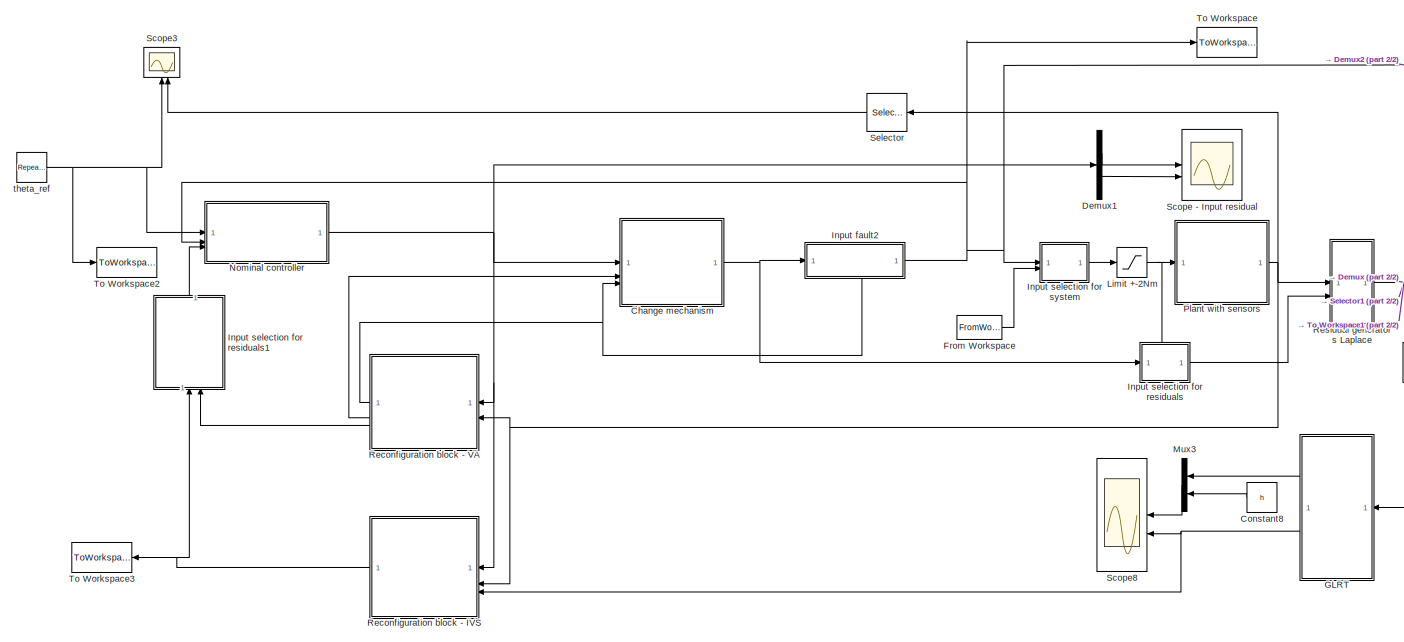
[diagram: root canvas - part 1/2, most of the canvas]
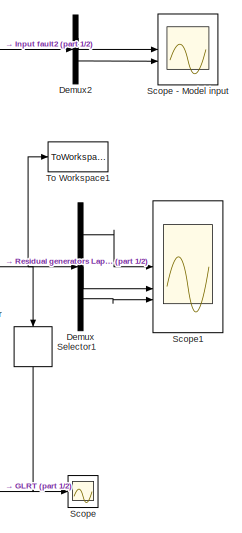
[diagram: root canvas - part 2/2, right side, full height]
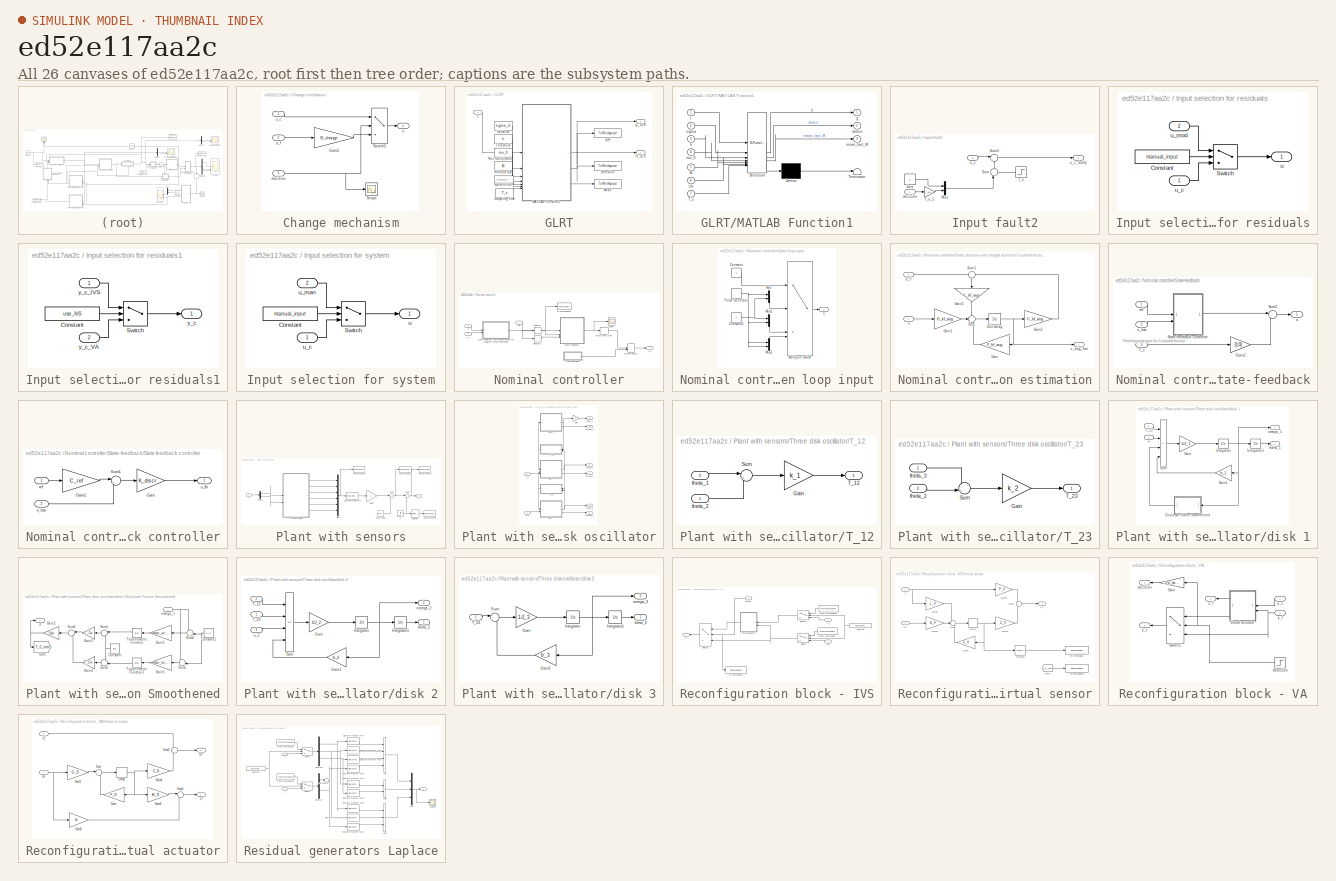
[diagram: thumbnail index - all 26 canvases of the model, root first then tree order]
MODEL slx_ed52e117aa2c
KIND model
CONFIG AbsTol = auto
CONFIG EnableMultiTasking = off
CONFIG FixedStep = auto
CONFIG MaxStep = auto
CONFIG MinStep = auto
CONFIG RelTol = 1e-8
CONFIG SampleTimeConstraint = Unconstrained
CONFIG SolverName = VariableStepAuto
CONFIG StartTime = 0.0
CONFIG StopTime = TSIM
BLOCK [SubSystem] Change mechanism
BLOCK [Gain] Change mechanism/Gain2
  Gain = B_change
  Multiplication = Matrix(K*u) (u vector)
BLOCK [Scope] Change mechanism/Scope
  Floating = off
  NumInputPorts = 1
  ScopeSpecificationString = Simulink.scopes.TimeScopeBlockCfg('CurrentConfiguration', extmgr.ConfigurationSet(extmgr.Configuration('Core','General UI',true),extmgr.Configuration('Core','Source UI',true),extmgr.Configuration('Sources','WiredSimulink',true,'DataLoggingVariableName','ScopeData3'),extmgr.Configuration('Visuals','Time Domain',true,'SerializedDisplays',{struct('MinYLimReal','-1.125','MaxYLimReal','0.125','YLabelRe...<+1385ch>
BLOCK [Switch] Change mechanism/Switch2
  InputSameDT = off
  OutDataTypeStr = double
  SaturateOnIntegerOverflow = off
BLOCK [Inport] Change mechanism/decision
  Port = 3
BLOCK [Outport] Change mechanism/u
BLOCK [Inport] Change mechanism/u_c
BLOCK [Inport] Change mechanism/u_f
  Port = 2
BLOCK [Constant] Constant8
  Value = h
BLOCK [Demux] Demux
  Outputs = 3
BLOCK [Demux] Demux1
  Outputs = 2
BLOCK [Demux] Demux2
  Outputs = 2
BLOCK [FromWorkspace] From Workspace
  VariableName = u_in
BLOCK [SubSystem] GLRT
BLOCK [ToWorkspace] GLRT/Detection
  FixptAsFi = on
  MaxDataPoints = inf
  SampleTime = T_s
  VariableName = d
BLOCK [Outport] GLRT/H_GLR
  Port = 2
  VectorParamsAs1DForOutWhenUnconnected = off
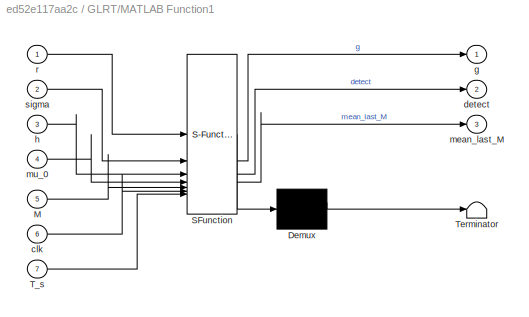
BLOCK [SubSystem] GLRT/MATLAB Function1
  ErrorFcn = Stateflow.Translate.translate
  PermitHierarchicalResolution = ExplicitOnly
  SFBlockType = MATLAB Function
  TreatAsAtomicUnit = on
BLOCK [Demux] GLRT/MATLAB Function1/ Demux 
  Outputs = 1
BLOCK [S-Function] GLRT/MATLAB Function1/ SFunction 
  EnableBusSupport = on
  FunctionName = sf_sfun
  PortCounts = [7 4]
  SFcnIsStateOwnerBlock = off
  SFunctionDeploymentMode = off
  Tag = Stateflow S-Function 1
BLOCK [Terminator] GLRT/MATLAB Function1/ Terminator 
BLOCK [Inport] GLRT/MATLAB Function1/M
  Port = 5
BLOCK [Inport] GLRT/MATLAB Function1/T_s
  Port = 7
BLOCK [Inport] GLRT/MATLAB Function1/clk
  Port = 6
BLOCK [Outport] GLRT/MATLAB Function1/detect
  Port = 2
BLOCK [Outport] GLRT/MATLAB Function1/g
BLOCK [Inport] GLRT/MATLAB Function1/h
  Port = 3
BLOCK [Outport] GLRT/MATLAB Function1/mean_last_M
  Port = 3
BLOCK [Inport] GLRT/MATLAB Function1/mu_0
  Port = 4
BLOCK [Inport] GLRT/MATLAB Function1/r
BLOCK [Inport] GLRT/MATLAB Function1/sigma
  Port = 2
BLOCK [ToWorkspace] GLRT/Mean
  FixptAsFi = on
  MaxDataPoints = inf
  SampleTime = T_s
  VariableName = m
BLOCK [Constant] GLRT/Non faulty mean
  Value = mu_0
BLOCK [Constant] GLRT/Sampling time
  Value = T_s
BLOCK [DigitalClock] GLRT/Synchronizer
  SampleTime = T_s
BLOCK [Constant] GLRT/Threshold
  Value = h
BLOCK [Constant] GLRT/Variance
  Value = sigma_r1
BLOCK [Constant] GLRT/Window size
  Value = M
BLOCK [ToWorkspace] GLRT/g(k)
  FixptAsFi = on
  MaxDataPoints = inf
  SampleTime = T_s
  VariableName = g
BLOCK [Outport] GLRT/g_GLR
  VectorParamsAs1DForOutWhenUnconnected = off
BLOCK [Inport] GLRT/z
BLOCK [SubSystem] Input fault2
  NameLocation = top
  PortSchema = {"entries":[{"content":{"sides":[{"content":{"connectorIds":["In1"]},"type":"ConnectorPlacement.EquallySpacedRectSide","uuid":"526c1397-4cf3-44a6-9980-98ca7a50f721"},{"content":{"connectorIds":["Out1"],"side":"RIGHT"},"type":"ConnectorPlacement.EquallySpacedRectSide","uuid":"ef964549-d7f9-46fc-bd3a-b9205641b52c"},{"content":{"side":"TOP"},"type":"ConnectorPlacement.EquallySpacedRectSide","uuid":"d...<+371ch>
BLOCK [Mux] Input fault2/Mux
  DisplayOption = bar
  Inputs = 2
BLOCK [Sum] Input fault2/Sum
  Inputs = |++
  NameLocation = right
BLOCK [Sum] Input fault2/Sum4
  Inputs = |++
BLOCK [Constant] Input fault2/Zero
  OutDataTypeStr = Inherit: Inherit via back propagation
  Value = 0
BLOCK [Inport] Input fault2/decision
  Port = 2
BLOCK [Step] Input fault2/f_u
  After = f_u
  NameLocation = top
  SampleTime = 0
  Time = f_u_time
BLOCK [Gain] Input fault2/f_u_2
  Gain = f_u(2)
BLOCK [Inport] Input fault2/u_c
BLOCK [Outport] Input fault2/u_c_faulty
BLOCK [SubSystem] Input selection for residuals
  PortSchema = {"entries":[{"content":{"sides":[{"content":{"connectorIds":["In1"]},"type":"ConnectorPlacement.EquallySpacedRectSide","uuid":"2ac5a926-3df0-4a66-9f06-d0f952d6fc90"},{"content":{"connectorIds":["Out1"],"side":"RIGHT"},"type":"ConnectorPlacement.EquallySpacedRectSide","uuid":"add5b808-79ba-4995-a040-b94ef5c4e3d6"},{"content":{"connectorIds":["In2"],"side":"TOP"},"type":"ConnectorPlacement.EquallySp...<+245ch>
BLOCK [Constant] Input selection for residuals/Constant
  Value = manual_input
BLOCK [Switch] Input selection for residuals/Switch
  Criteria = u2 > Threshold
  InputSameDT = off
  SaturateOnIntegerOverflow = off
BLOCK [Outport] Input selection for residuals/u
BLOCK [Inport] Input selection for residuals/u_c
BLOCK [Inport] Input selection for residuals/u_mod
  Port = 2
BLOCK [SubSystem] Input selection for residuals1
  NameLocation = right
BLOCK [Constant] Input selection for residuals1/Constant
  Value = use_IVS
BLOCK [Switch] Input selection for residuals1/Switch
  Criteria = u2 > Threshold
  InputSameDT = off
  SaturateOnIntegerOverflow = off
BLOCK [Outport] Input selection for residuals1/y_c
BLOCK [Inport] Input selection for residuals1/y_c_IVS
BLOCK [Inport] Input selection for residuals1/y_c_VA
  Port = 2
BLOCK [SubSystem] Input selection for system
BLOCK [Constant] Input selection for system/Constant
  Value = manual_input
BLOCK [Switch] Input selection for system/Switch
  Criteria = u2 > Threshold
  InputSameDT = off
  SaturateOnIntegerOverflow = off
BLOCK [Outport] Input selection for system/u
BLOCK [Inport] Input selection for system/u_c
BLOCK [Inport] Input selection for system/u_man
  Port = 2
BLOCK [Saturate] Limit +-2Nm
  LowerLimit = -2
  UpperLimit = 2
BLOCK [Mux] Mux3
  DisplayOption = bar
  Inputs = 2
BLOCK [SubSystem] Nominal controller
BLOCK [ManualSwitch] Nominal controller/Manual Switch
BLOCK [SubSystem] Nominal controller/Open loop input
BLOCK [Constant] Nominal controller/Open loop input/Constant
  Value = 3
BLOCK [Constant] Nominal controller/Open loop input/Constant1
  Value = 0
BLOCK [MultiPortSwitch] Nominal controller/Open loop input/Multiport Switch
  InputSameDT = off
  SaturateOnIntegerOverflow = off
BLOCK [Mux] Nominal controller/Open loop input/Mux
  DisplayOption = bar
  Inputs = 2
BLOCK [Mux] Nominal controller/Open loop input/Mux1
  DisplayOption = bar
  Inputs = 2
BLOCK [Mux] Nominal controller/Open loop input/Mux2
  DisplayOption = bar
  Inputs = 2
BLOCK [DiscretePulseGenerator] Nominal controller/Open loop input/Pulse Generator
  Period = 10
  PulseType = Time based
  PulseWidth = 5
BLOCK [Outport] Nominal controller/Open loop input/u
BLOCK [Scope] Nominal controller/Scope
  Floating = off
  NumInputPorts = 1
  ScopeSpecificationString = Simulink.scopes.TimeScopeBlockCfg('CurrentConfiguration', extmgr.ConfigurationSet(extmgr.Configuration('Core','General UI',true),extmgr.Configuration('Core','Source UI',true),extmgr.Configuration('Sources','WiredSimulink',true,'DataLoggingVariableName','ScopeData1'),extmgr.Configuration('Visuals','Time Domain',true,'SerializedDisplays',{struct('MinYLimReal','-1.51308','MaxYLimReal','1.51292','YLab...<+1479ch>
BLOCK [Selector] Nominal controller/Selector
  IndexOptions = Index vector (dialog)
  Indices = [1:6]
  InputPortWidth = 7
  OutputSizes = 1
BLOCK [Selector] Nominal controller/Selector1
  IndexOptions = Index vector (dialog)
  Indices = [7]
  InputPortWidth = 7
  OutputSizes = 1
BLOCK [SubSystem] Nominal controller/State observer with integral action for Coulomb friction estimation
BLOCK [Gain] Nominal controller/State observer with integral action for Coulomb friction estimation/Gain
  Gain = F_kf_aug
  Multiplication = Matrix(K*u) (u vector)
BLOCK [Gain] Nominal controller/State observer with integral action for Coulomb friction estimation/Gain1
  Gain = G_kf_aug
  Multiplication = Matrix(K*u) (u vector)
BLOCK [Gain] Nominal controller/State observer with integral action for Coulomb friction estimation/Gain2
  Gain = C_kf_aug
  Multiplication = Matrix(K*u) (u vector)
BLOCK [Gain] Nominal controller/State observer with integral action for Coulomb friction estimation/Gain3
  Gain = L_kf_aug
  Multiplication = Matrix(K*u) (u vector)
  NameLocation = left
BLOCK [Sum] Nominal controller/State observer with integral action for Coulomb friction estimation/Sum
  Inputs = +++
BLOCK [Sum] Nominal controller/State observer with integral action for Coulomb friction estimation/Sum1
  Inputs = +-
  NameLocation = left
BLOCK [UnitDelay] Nominal controller/State observer with integral action for Coulomb friction estimation/Unit Delay
  HasFrameUpgradeWarning = on
  SampleTime = T_s
BLOCK [Inport] Nominal controller/State observer with integral action for Coulomb friction estimation/u
BLOCK [Outport] Nominal controller/State observer with integral action for Coulomb friction estimation/x_aug_hat
  VectorParamsAs1DForOutWhenUnconnected = off
BLOCK [Inport] Nominal controller/State observer with integral action for Coulomb friction estimation/y_c
  Port = 2
BLOCK [SubSystem] Nominal controller/State-feedback
BLOCK [Gain] Nominal controller/State-feedback/Gain2
  Gain = [1;0]
  NameLocation = top
BLOCK [SubSystem] Nominal controller/State-feedback/State feedback controller
BLOCK [Gain] Nominal controller/State-feedback/State feedback controller/Gain
  Gain = K_discr
  Multiplication = Matrix(K*u) (u vector)
  NameLocation = top
BLOCK [Gain] Nominal controller/State-feedback/State feedback controller/Gain1
  Gain = C_ref
  Multiplication = Matrix(K*u) (u vector)
BLOCK [Sum] Nominal controller/State-feedback/State feedback controller/Sum1
  Inputs = |+-
BLOCK [Inport] Nominal controller/State-feedback/State feedback controller/ref
BLOCK [Outport] Nominal controller/State-feedback/State feedback controller/u_fb
BLOCK [Inport] Nominal controller/State-feedback/State feedback controller/x_hat
  Port = 2
BLOCK [Sum] Nominal controller/State-feedback/Sum2
  Inputs = |+-
BLOCK [Inport] Nominal controller/State-feedback/T_c
  Port = 3
BLOCK [Inport] Nominal controller/State-feedback/ref
BLOCK [Outport] Nominal controller/State-feedback/u
  VectorParamsAs1DForOutWhenUnconnected = off
BLOCK [Inport] Nominal controller/State-feedback/x_hat
  Port = 2
BLOCK [ToWorkspace] Nominal controller/To Workspace1
  FixptAsFi = on
  MaxDataPoints = inf
  SampleTime = T_s
  VariableName = x_hat
BLOCK [ZeroOrderHold] Nominal controller/Zero-Order Hold
  SampleTime = T_s
BLOCK [Inport] Nominal controller/ref
BLOCK [Inport] Nominal controller/u
  Port = 2
BLOCK [Outport] Nominal controller/u_c
BLOCK [Inport] Nominal controller/y_c
  Port = 3
BLOCK [SubSystem] Plant with sensors
BLOCK [Demux] Plant with sensors/Demux
  Outputs = 2
BLOCK [DiscreteTransferFcn] Plant with sensors/Discrete Transfer Fcn
  Denominator = [1]
  InputPortMap = u0
  SampleTime = T_s
BLOCK [Gain] Plant with sensors/Gain2
  Gain = C
  Multiplication = Matrix(K*u) (u vector)
BLOCK [Mux] Plant with sensors/Mux
  DisplayOption = bar
  Inputs = 6
BLOCK [Selector] Plant with sensors/Selector
  IndexOptions = Index vector (dialog)
  Indices = [2]
  InputPortWidth = 3
  OutputSizes = 1
BLOCK [RandomNumber] Plant with sensors/Sensor noise
  Mean = zeros(3,1)
  SampleTime = T_s
  Variance = diag(sigma_meas^2)
BLOCK [Sum] Plant with sensors/Sum2
  Inputs = |++
BLOCK [Sum] Plant with sensors/Sum4
  Inputs = |++
BLOCK [SubSystem] Plant with sensors/Three disk oscillator
BLOCK [Gain] Plant with sensors/Three disk oscillator/Gain
BLOCK [SubSystem] Plant with sensors/Three disk oscillator/T_12
BLOCK [Gain] Plant with sensors/Three disk oscillator/T_12/Gain
  Gain = k_1
BLOCK [Sum] Plant with sensors/Three disk oscillator/T_12/Sum
  Inputs = |+-
BLOCK [Outport] Plant with sensors/Three disk oscillator/T_12/T_12
  VectorParamsAs1DForOutWhenUnconnected = off
BLOCK [Inport] Plant with sensors/Three disk oscillator/T_12/theta_1
  Port = 2
BLOCK [Inport] Plant with sensors/Three disk oscillator/T_12/theta_2
BLOCK [SubSystem] Plant with sensors/Three disk oscillator/T_23
BLOCK [Gain] Plant with sensors/Three disk oscillator/T_23/Gain
  Gain = k_2
BLOCK [Sum] Plant with sensors/Three disk oscillator/T_23/Sum
  Inputs = -+|
BLOCK [Outport] Plant with sensors/Three disk oscillator/T_23/T_23
  VectorParamsAs1DForOutWhenUnconnected = off
BLOCK [Inport] Plant with sensors/Three disk oscillator/T_23/theta_2
  Port = 2
BLOCK [Inport] Plant with sensors/Three disk oscillator/T_23/theta_3
BLOCK [SubSystem] Plant with sensors/Three disk oscillator/disk 1
BLOCK [SubSystem] Plant with sensors/Three disk oscillator/disk 1/Coulomb Friction Smoothened
BLOCK [Constant] Plant with sensors/Three disk oscillator/disk 1/Coulomb Friction Smoothened/Constant
  Value = pi/2
BLOCK [Constant] Plant with sensors/Three disk oscillator/disk 1/Coulomb Friction Smoothened/Constant1
  Value = w_th
BLOCK [Gain] Plant with sensors/Three disk oscillator/disk 1/Coulomb Friction Smoothened/Gain1
  Gain = atan_scale
BLOCK [Gain] Plant with sensors/Three disk oscillator/disk 1/Coulomb Friction Smoothened/Gain2
  Gain = 1/pi
BLOCK [Gain] Plant with sensors/Three disk oscillator/disk 1/Coulomb Friction Smoothened/Gain3
  Gain = T_Cp
BLOCK [Gain] Plant with sensors/Three disk oscillator/disk 1/Coulomb Friction Smoothened/Gain4
  Gain = T_Cm
BLOCK [Gain] Plant with sensors/Three disk oscillator/disk 1/Coulomb Friction Smoothened/Gain5
  Gain = atan_scale
BLOCK [Goto] Plant with sensors/Three disk oscillator/disk 1/Coulomb Friction Smoothened/Goto
  GotoTag = T_C_real
  TagVisibility = global
BLOCK [Sum] Plant with sensors/Three disk oscillator/disk 1/Coulomb Friction Smoothened/Sum1
  Inputs = |++
BLOCK [Sum] Plant with sensors/Three disk oscillator/disk 1/Coulomb Friction Smoothened/Sum2
  Inputs = +-|
BLOCK [Sum] Plant with sensors/Three disk oscillator/disk 1/Coulomb Friction Smoothened/Sum3
  Inputs = |+-
BLOCK [Sum] Plant with sensors/Three disk oscillator/disk 1/Coulomb Friction Smoothened/Sum4
  Inputs = +-|
BLOCK [Sum] Plant with sensors/Three disk oscillator/disk 1/Coulomb Friction Smoothened/Sum5
  Inputs = ++|
BLOCK [Trigonometry] Plant with sensors/Three disk oscillator/disk 1/Coulomb Friction Smoothened/Trigonometric Function
  Operator = atan
BLOCK [Trigonometry] Plant with sensors/Three disk oscillator/disk 1/Coulomb Friction Smoothened/Trigonometric Function1
  Operator = atan
BLOCK [Outport] Plant with sensors/Three disk oscillator/disk 1/Coulomb Friction Smoothened/d
  VectorParamsAs1DForOutWhenUnconnected = off
BLOCK [Inport] Plant with sensors/Three disk oscillator/disk 1/Coulomb Friction Smoothened/omega_1
BLOCK [Gain] Plant with sensors/Three disk oscillator/disk 1/Gain
  Gain = 1/J_1
BLOCK [Gain] Plant with sensors/Three disk oscillator/disk 1/Gain1
  Gain = b_1
BLOCK [Integrator] Plant with sensors/Three disk oscillator/disk 1/Integrator
  InitialCondition = x_0(2)
BLOCK [Integrator] Plant with sensors/Three disk oscillator/disk 1/Integrator1
  InitialCondition = x_0(1)
BLOCK [Sum] Plant with sensors/Three disk oscillator/disk 1/Sum
  IconShape = rectangular
  Inputs = -+--
BLOCK [Inport] Plant with sensors/Three disk oscillator/disk 1/T_12
BLOCK [Outport] Plant with sensors/Three disk oscillator/disk 1/omega_1
  Port = 2
  VectorParamsAs1DForOutWhenUnconnected = off
BLOCK [Outport] Plant with sensors/Three disk oscillator/disk 1/theta_1
  VectorParamsAs1DForOutWhenUnconnected = off
BLOCK [Inport] Plant with sensors/Three disk oscillator/disk 1/u
  Port = 2
BLOCK [SubSystem] Plant with sensors/Three disk oscillator/disk 2
BLOCK [Gain] Plant with sensors/Three disk oscillator/disk 2/Gain
  Gain = 1/J_2
BLOCK [Gain] Plant with sensors/Three disk oscillator/disk 2/Gain1
  Gain = b_2
BLOCK [Integrator] Plant with sensors/Three disk oscillator/disk 2/Integrator
  InitialCondition = x_0(4)
BLOCK [Integrator] Plant with sensors/Three disk oscillator/disk 2/Integrator1
  InitialCondition = x_0(3)
BLOCK [Sum] Plant with sensors/Three disk oscillator/disk 2/Sum
  IconShape = rectangular
  Inputs = +-+-
BLOCK [Inport] Plant with sensors/Three disk oscillator/disk 2/T_12
  Port = 2
BLOCK [Inport] Plant with sensors/Three disk oscillator/disk 2/T_23
BLOCK [Outport] Plant with sensors/Three disk oscillator/disk 2/omega_2
  Port = 2
  VectorParamsAs1DForOutWhenUnconnected = off
BLOCK [Outport] Plant with sensors/Three disk oscillator/disk 2/theta_2
  VectorParamsAs1DForOutWhenUnconnected = off
BLOCK [Inport] Plant with sensors/Three disk oscillator/disk 2/u_2
  Port = 3
BLOCK [SubSystem] Plant with sensors/Three disk oscillator/disk 3
BLOCK [Gain] Plant with sensors/Three disk oscillator/disk 3/Gain
  Gain = 1/J_3
BLOCK [Gain] Plant with sensors/Three disk oscillator/disk 3/Gain1
  Gain = b_3
BLOCK [Integrator] Plant with sensors/Three disk oscillator/disk 3/Integrator
  InitialCondition = x_0(6)
BLOCK [Integrator] Plant with sensors/Three disk oscillator/disk 3/Integrator1
  InitialCondition = x_0(5)
BLOCK [Sum] Plant with sensors/Three disk oscillator/disk 3/Sum
  Inputs = |+-
BLOCK [Inport] Plant with sensors/Three disk oscillator/disk 3/T_23
BLOCK [Outport] Plant with sensors/Three disk oscillator/disk 3/omega_3
  Port = 2
  VectorParamsAs1DForOutWhenUnconnected = off
BLOCK [Outport] Plant with sensors/Three disk oscillator/disk 3/theta_3
  VectorParamsAs1DForOutWhenUnconnected = off
BLOCK [Outport] Plant with sensors/Three disk oscillator/omega_1
  Port = 2
  VectorParamsAs1DForOutWhenUnconnected = off
BLOCK [Outport] Plant with sensors/Three disk oscillator/omega_2
  Port = 4
  VectorParamsAs1DForOutWhenUnconnected = off
BLOCK [Outport] Plant with sensors/Three disk oscillator/omega_3
  Port = 6
  VectorParamsAs1DForOutWhenUnconnected = off
BLOCK [Outport] Plant with sensors/Three disk oscillator/theta_1
  VectorParamsAs1DForOutWhenUnconnected = off
BLOCK [Outport] Plant with sensors/Three disk oscillator/theta_2
  Port = 3
  VectorParamsAs1DForOutWhenUnconnected = off
BLOCK [Outport] Plant with sensors/Three disk oscillator/theta_3
  Port = 5
  VectorParamsAs1DForOutWhenUnconnected = off
BLOCK [Inport] Plant with sensors/Three disk oscillator/u_1
BLOCK [Inport] Plant with sensors/Three disk oscillator/u_2
  Port = 2
BLOCK [ToWorkspace] Plant with sensors/To Workspace
  FixptAsFi = on
  MaxDataPoints = inf
  SampleTime = T_s
  VariableName = x_real
BLOCK [ToWorkspace] Plant with sensors/To Workspace1
  FixptAsFi = on
  MaxDataPoints = inf
  SampleTime = T_s
  VariableName = y_real
BLOCK [ToWorkspace] Plant with sensors/To Workspace2
  FixptAsFi = on
  MaxDataPoints = inf
  SampleTime = T_s
  VariableName = y_meas
BLOCK [ToWorkspace] Plant with sensors/To Workspace3
  FixptAsFi = on
  MaxDataPoints = inf
  SampleTime = T_s
  VariableName = f_2
BLOCK [Step] Plant with sensors/f_y
  After = f_m
  Before = [0;0;0]
  SampleTime = 0
  Time = f_m_time
BLOCK [Inport] Plant with sensors/u
BLOCK [Outport] Plant with sensors/y
  VectorParamsAs1DForOutWhenUnconnected = off
BLOCK [SubSystem] Reconfiguration block - IVS
BLOCK [Constant] Reconfiguration block - IVS/Constant
  NameLocation = top
  Value = sim_experiment
BLOCK [FromWorkspace] Reconfiguration block - IVS/From Workspace
  NameLocation = top
  VariableName = y_experiment
BLOCK [FromWorkspace] Reconfiguration block - IVS/From Workspace1
  NameLocation = top
  VariableName = u_experiment
BLOCK [Switch] Reconfiguration block - IVS/Switch
  Criteria = u2 > Threshold
  InputSameDT = off
  NameLocation = top
  SaturateOnIntegerOverflow = off
BLOCK [Switch] Reconfiguration block - IVS/Switch1
  InputSameDT = off
  SaturateOnIntegerOverflow = off
  Threshold = 0.98
BLOCK [Switch] Reconfiguration block - IVS/Switch2
  Criteria = u2 > Threshold
  InputSameDT = off
  NameLocation = top
  SaturateOnIntegerOverflow = off
BLOCK [ToWorkspace] Reconfiguration block - IVS/To Workspace
  FixptAsFi = on
  MaxDataPoints = inf
  SampleTime = T_s
  VariableName = detect
BLOCK [SubSystem] Reconfiguration block - IVS/Virtual sensor
BLOCK [Delay] Reconfiguration block - IVS/Virtual sensor/Delay
  DelayLength = 1
  InputPortMap = u0
  SampleTime = T_s
BLOCK [From] Reconfiguration block - IVS/Virtual sensor/From
  GotoTag = T_C_real
  TagVisibility = global
BLOCK [Gain] Reconfiguration block - IVS/Virtual sensor/Gain
  Gain = F_V
  Multiplication = Matrix(K*u) (u vector)
BLOCK [Gain] Reconfiguration block - IVS/Virtual sensor/Gain1
  Gain = G_V
  Multiplication = Matrix(K*u) (u vector)
BLOCK [Gain] Reconfiguration block - IVS/Virtual sensor/Gain3
  Gain = P_V
  Multiplication = Matrix(K*u) (u vector)
  NameLocation = top
BLOCK [Gain] Reconfiguration block - IVS/Virtual sensor/Gain4
  Gain = C_V
  Multiplication = Matrix(K*u) (u vector)
BLOCK [Gain] Reconfiguration block - IVS/Virtual sensor/Gain6
  Gain = L_V
  Multiplication = Matrix(K*u) (u vector)
BLOCK [Selector] Reconfiguration block - IVS/Virtual sensor/Selector
  IndexOptions = Index vector (dialog)
  Indices = [7]
  InputPortWidth = 7
  NameLocation = top
  OutputSizes = 1
BLOCK [Sum] Reconfiguration block - IVS/Virtual sensor/Sum
  Inputs = +++
BLOCK [Sum] Reconfiguration block - IVS/Virtual sensor/Sum2
BLOCK [ToWorkspace] Reconfiguration block - IVS/Virtual sensor/To Workspace
  FixptAsFi = on
  MaxDataPoints = inf
  SampleTime = T_s
  VariableName = dist_hat
BLOCK [ToWorkspace] Reconfiguration block - IVS/Virtual sensor/To Workspace1
  FixptAsFi = on
  MaxDataPoints = inf
  SampleTime = T_s
  VariableName = dist
BLOCK [Inport] Reconfiguration block - IVS/Virtual sensor/u_c
BLOCK [Outport] Reconfiguration block - IVS/Virtual sensor/y_c
  VectorParamsAs1DForOutWhenUnconnected = off
BLOCK [Inport] Reconfiguration block - IVS/Virtual sensor/y_f
  Port = 2
BLOCK [Inport] Reconfiguration block - IVS/detect
  NameLocation = top
  Port = 3
BLOCK [Inport] Reconfiguration block - IVS/u_c
BLOCK [Outport] Reconfiguration block - IVS/y_c
  VectorParamsAs1DForOutWhenUnconnected = off
BLOCK [Inport] Reconfiguration block - IVS/y_f
  Port = 2
BLOCK [SubSystem] Reconfiguration block - VA
BLOCK [Gain] Reconfiguration block - VA/Gain
  Gain = -1*u_fault
BLOCK [Switch] Reconfiguration block - VA/Switch1
  InputSameDT = off
  SaturateOnIntegerOverflow = off
  Threshold = 0.98
BLOCK [SubSystem] Reconfiguration block - VA/Virtual actuator
BLOCK [Delay] Reconfiguration block - VA/Virtual actuator/Delay
  DelayLength = 1
  InputPortMap = u0
  SampleTime = T_s
BLOCK [Gain] Reconfiguration block - VA/Virtual actuator/Gain
  Gain = F_D
  Multiplication = Matrix(K*u) (u vector)
BLOCK [Gain] Reconfiguration block - VA/Virtual actuator/Gain1
  Gain = G_D
  Multiplication = Matrix(K*u) (u vector)
BLOCK [Gain] Reconfiguration block - VA/Virtual actuator/Gain2
  Gain = M_D
  Multiplication = Matrix(K*u) (u vector)
BLOCK [Gain] Reconfiguration block - VA/Virtual actuator/Gain4
  Gain = C_D
  Multiplication = Matrix(K*u) (u vector)
BLOCK [Gain] Reconfiguration block - VA/Virtual actuator/Gain5
  Gain = N
  Multiplication = Matrix(K*u) (u vector)
  NameLocation = top
BLOCK [Sum] Reconfiguration block - VA/Virtual actuator/Sum
  Inputs = |++
BLOCK [Sum] Reconfiguration block - VA/Virtual actuator/Sum1
  Inputs = |++
BLOCK [Sum] Reconfiguration block - VA/Virtual actuator/Sum2
BLOCK [Inport] Reconfiguration block - VA/Virtual actuator/u_c
BLOCK [Outport] Reconfiguration block - VA/Virtual actuator/u_f
  VectorParamsAs1DForOutWhenUnconnected = off
BLOCK [Outport] Reconfiguration block - VA/Virtual actuator/y_c
  Port = 2
  VectorParamsAs1DForOutWhenUnconnected = off
BLOCK [Inport] Reconfiguration block - VA/Virtual actuator/y_f
  Port = 2
BLOCK [Outport] Reconfiguration block - VA/decision
  VectorParamsAs1DForOutWhenUnconnected = off
BLOCK [Step] Reconfiguration block - VA/detection
  SampleTime = T_s
  Time = detect_time
BLOCK [Inport] Reconfiguration block - VA/u_c
BLOCK [Outport] Reconfiguration block - VA/u_f
  NameLocation = top
  Port = 2
  VectorParamsAs1DForOutWhenUnconnected = off
BLOCK [Outport] Reconfiguration block - VA/y_c
  Port = 3
  VectorParamsAs1DForOutWhenUnconnected = off
BLOCK [Inport] Reconfiguration block - VA/y_f
  Port = 2
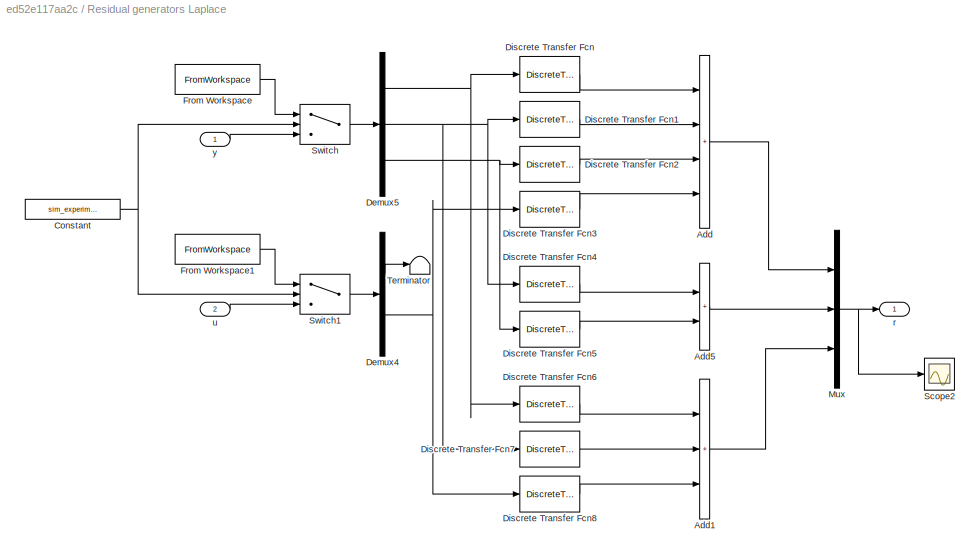
BLOCK [SubSystem] Residual generators Laplace
BLOCK [Sum] Residual generators Laplace/Add
  IconShape = rectangular
  Inputs = ++++
BLOCK [Sum] Residual generators Laplace/Add1
  IconShape = rectangular
  Inputs = +++
BLOCK [Sum] Residual generators Laplace/Add5
  IconShape = rectangular
BLOCK [Constant] Residual generators Laplace/Constant
  Value = sim_experiment
BLOCK [Demux] Residual generators Laplace/Demux4
  Outputs = 2
BLOCK [Demux] Residual generators Laplace/Demux5
  Outputs = 3
BLOCK [DiscreteTransferFcn] Residual generators Laplace/Discrete Transfer Fcn
  Denominator = r1y1_den_dt
  InputPortMap = u0
  Numerator = r1y1_num_dt
BLOCK [DiscreteTransferFcn] Residual generators Laplace/Discrete Transfer Fcn1
  Denominator = r1y2_den_dt
  InputPortMap = u0
  Numerator = r1y2_num_dt
BLOCK [DiscreteTransferFcn] Residual generators Laplace/Discrete Transfer Fcn2
  Denominator = r1y3_den_dt
  InputPortMap = u0
  Numerator = r1y3_num_dt
BLOCK [DiscreteTransferFcn] Residual generators Laplace/Discrete Transfer Fcn3
  Denominator = r1u2_den_dt
  InputPortMap = u0
  Numerator = r1u2_num_dt
BLOCK [DiscreteTransferFcn] Residual generators Laplace/Discrete Transfer Fcn4
  Denominator = r2y2_den_dt
  InputPortMap = u0
  Numerator = r2y2_num_dt
BLOCK [DiscreteTransferFcn] Residual generators Laplace/Discrete Transfer Fcn5
  Denominator = r2y3_den_dt
  InputPortMap = u0
  Numerator = r2y3_num_dt
BLOCK [DiscreteTransferFcn] Residual generators Laplace/Discrete Transfer Fcn6
  Denominator = r3y1_den_dt
  InputPortMap = u0
  Numerator = r3y1_num_dt
BLOCK [DiscreteTransferFcn] Residual generators Laplace/Discrete Transfer Fcn7
  Denominator = r3y2_den_dt
  InputPortMap = u0
  Numerator = r3y2_num_dt
BLOCK [DiscreteTransferFcn] Residual generators Laplace/Discrete Transfer Fcn8
  Denominator = r3u2_den_dt
  InputPortMap = u0
  Numerator = r3u2_num_dt
BLOCK [FromWorkspace] Residual generators Laplace/From Workspace
  VariableName = y_experiment
BLOCK [FromWorkspace] Residual generators Laplace/From Workspace1
  VariableName = u_experiment
BLOCK [Mux] Residual generators Laplace/Mux
  DisplayOption = bar
  Inputs = 3
BLOCK [Scope] Residual generators Laplace/Scope2
  Floating = off
  NumInputPorts = 1
  ScopeSpecificationString = Simulink.scopes.TimeScopeBlockCfg('CurrentConfiguration', extmgr.ConfigurationSet(extmgr.Configuration('Core','General UI',true),extmgr.Configuration('Core','Source UI',true),extmgr.Configuration('Sources','WiredSimulink',true,'DataLoggingVariableName','ScopeData3'),extmgr.Configuration('Visuals','Time Domain',true,'SerializedDisplays',{struct('MinYLimReal','-0.16001','MaxYLimReal','0.08985','YLab...<+1405ch>
BLOCK [Switch] Residual generators Laplace/Switch
  Criteria = u2 > Threshold
  InputSameDT = off
  SaturateOnIntegerOverflow = off
BLOCK [Switch] Residual generators Laplace/Switch1
  Criteria = u2 > Threshold
  InputSameDT = off
  SaturateOnIntegerOverflow = off
BLOCK [Terminator] Residual generators Laplace/Terminator
BLOCK [Outport] Residual generators Laplace/r
BLOCK [Inport] Residual generators Laplace/u
  Port = 2
BLOCK [Inport] Residual generators Laplace/y
BLOCK [Scope] Scope
  Floating = off
  NumInputPorts = 1
  ScopeSpecificationString = Simulink.scopes.TimeScopeBlockCfg('CurrentConfiguration', extmgr.ConfigurationSet(extmgr.Configuration('Core','General UI',true),extmgr.Configuration('Core','Source UI',true),extmgr.Configuration('Sources','WiredSimulink',true,'DataLoggingVariableName','ScopeData2'),extmgr.Configuration('Visuals','Time Domain',true,'SerializedDisplays',{struct('MinYLimReal','-0.1534','MaxYLimReal','0.57406','YLabe...<+1366ch>
BLOCK [Scope] Scope - Input residual
  Floating = off
  NumInputPorts = 2
  ScopeSpecificationString = Simulink.scopes.TimeScopeBlockCfg('CurrentConfiguration', extmgr.ConfigurationSet(extmgr.Configuration('Core','General UI',true),extmgr.Configuration('Core','Source UI',true),extmgr.Configuration('Sources','WiredSimulink',true,'SampleTime','T_s','DataLoggingVariableName','ScopeData3'),extmgr.Configuration('Visuals','Time Domain',true,'SerializedDisplays',{struct('MinYLimReal','-0.125','MaxYLimReal...<+2312ch>
BLOCK [Scope] Scope - Model input
  Floating = off
  NumInputPorts = 2
  ScopeSpecificationString = Simulink.scopes.TimeScopeBlockCfg('CurrentConfiguration', extmgr.ConfigurationSet(extmgr.Configuration('Core','General UI',true),extmgr.Configuration('Core','Source UI',true),extmgr.Configuration('Sources','WiredSimulink',true,'SampleTime','T_s','DataLoggingVariableName','ScopeData1'),extmgr.Configuration('Visuals','Time Domain',true,'SerializedDisplays',{struct('MinYLimReal','-0.125','MaxYLimReal...<+2314ch>
BLOCK [Scope] Scope1
  Floating = off
  NumInputPorts = 3
  ScopeSpecificationString = Simulink.scopes.TimeScopeBlockCfg('CurrentConfiguration', extmgr.ConfigurationSet(extmgr.Configuration('Core','General UI',true),extmgr.Configuration('Core','Source UI',true),extmgr.Configuration('Sources','WiredSimulink',true,'SampleTime','T_s','DataLoggingVariableName','ScopeData4'),extmgr.Configuration('Visuals','Time Domain',true,'SerializedDisplays',{struct('MinYLimReal','-1.00000','MaxYLimRe...<+2305ch>
BLOCK [Scope] Scope3
  Floating = off
  NameLocation = left
  NumInputPorts = 2
  ScopeSpecificationString = Simulink.scopes.TimeScopeBlockCfg('CurrentConfiguration', extmgr.ConfigurationSet(extmgr.Configuration('Core','General UI',true),extmgr.Configuration('Core','Source UI',true),extmgr.Configuration('Sources','WiredSimulink',true,'SampleTime','T_s','DataLoggingVariableName','ScopeData3'),extmgr.Configuration('Visuals','Time Domain',true,'SerializedDisplays',{struct('MinYLimReal','-0.48008','MaxYLimRe...<+1623ch>
BLOCK [Scope] Scope8
  Floating = off
  NumInputPorts = 2
  ScopeSpecificationString = Simulink.scopes.TimeScopeBlockCfg('CurrentConfiguration', extmgr.ConfigurationSet(extmgr.Configuration('Core','General UI',true),extmgr.Configuration('Core','Source UI',true),extmgr.Configuration('Sources','WiredSimulink',true,'DataLoggingVariableName','ScopeData1'),extmgr.Configuration('Visuals','Time Domain',true,'SerializedDisplays',{struct('MinYLimReal','-0.94404','MaxYLimReal','9.08025','YLab...<+2099ch>
BLOCK [Selector] Selector
  IndexOptions = Index vector (dialog)
  Indices = [3]
  InputPortWidth = 3
  OutputSizes = 1
BLOCK [Selector] Selector1
  IndexOptions = Index vector (dialog)
  Indices = [1]
  InputPortWidth = 3
  NameLocation = left
  OutputSizes = 1
BLOCK [ToWorkspace] To Workspace
  FixptAsFi = on
  MaxDataPoints = inf
  SampleTime = T_s
  VariableName = input_u
BLOCK [ToWorkspace] To Workspace1
  FixptAsFi = on
  MaxDataPoints = inf
  SampleTime = T_s
  VariableName = r
BLOCK [ToWorkspace] To Workspace2
  FixptAsFi = on
  MaxDataPoints = inf
  SampleTime = T_s
  VariableName = theta_ref
BLOCK [ToWorkspace] To Workspace3
  FixptAsFi = on
  MaxDataPoints = inf
  NameLocation = top
  SampleTime = T_s
  VariableName = y_c
BLOCK [Reference] theta_ref  REF=simulink/Sources/Repeating
Sequence
Stair
  SourceBlock = simulink/Sources/Repeating\nSequence\nStair
  SourceType = Repeating Sequence Stair
ANNOTATION Nominal controller/State-feedback: Feed-forward term for Coulomb friction
LINE Change mechanism/Gain2:1 -> Change mechanism/Switch2:3
LINE Change mechanism/Switch2:1 -> Change mechanism/u:1
NET Change mechanism/decision:1 -> Change mechanism/Scope:1, Change mechanism/Switch2:2
LINE Change mechanism/u_c:1 -> Change mechanism/Switch2:1
LINE Change mechanism/u_f:1 -> Change mechanism/Gain2:1
NET Change mechanism:1 -> Input fault2:1, Input selection for residuals:1
LINE Constant8:1 -> Mux3:2
LINE Demux1:1 -> Scope - Input residual:1
LINE Demux1:2 -> Scope - Input residual:2
LINE Demux2:1 -> Scope - Model input:1
LINE Demux2:2 -> Scope - Model input:2
LINE Demux:1 -> Scope1:1
LINE Demux:2 -> Scope1:2
LINE Demux:3 -> Scope1:3
LINE From Workspace:1 -> Input selection for system:2
NET GLRT/MATLAB Function1:1 -> GLRT/g(k):1, GLRT/g_GLR:1
NET GLRT/MATLAB Function1:2 -> GLRT/Detection:1, GLRT/H_GLR:1
LINE GLRT/MATLAB Function1:3 -> GLRT/Mean:1
LINE GLRT/Non faulty mean:1 -> GLRT/MATLAB Function1:4
LINE GLRT/Sampling time:1 -> GLRT/MATLAB Function1:7
LINE GLRT/Synchronizer:1 -> GLRT/MATLAB Function1:6
LINE GLRT/Threshold:1 -> GLRT/MATLAB Function1:3
LINE GLRT/Variance:1 -> GLRT/MATLAB Function1:2
LINE GLRT/Window size:1 -> GLRT/MATLAB Function1:5
LINE GLRT/z:1 -> GLRT/MATLAB Function1:1
LINE GLRT:1 -> Mux3:1
NET GLRT:2 -> Reconfiguration block - IVS:3, Scope8:2
LINE Input fault2/Mux:1 -> Input fault2/Sum:1
LINE Input fault2/Sum4:1 -> Input fault2/u_c_faulty:1
LINE Input fault2/Sum:1 -> Input fault2/Sum4:2
LINE Input fault2/Zero:1 -> Input fault2/Mux:1
LINE Input fault2/decision:1 -> Input fault2/f_u_2:1
LINE Input fault2/f_u:1 -> Input fault2/Sum:2
LINE Input fault2/f_u_2:1 -> Input fault2/Mux:2
LINE Input fault2/u_c:1 -> Input fault2/Sum4:1
NET Input fault2:1 -> Demux2:1, Input selection for system:1, Nominal controller:2, To Workspace:1
LINE Input selection for residuals/Constant:1 -> Input selection for residuals/Switch:2
LINE Input selection for residuals/Switch:1 -> Input selection for residuals/u:1
LINE Input selection for residuals/u_c:1 -> Input selection for residuals/Switch:3
LINE Input selection for residuals/u_mod:1 -> Input selection for residuals/Switch:1
LINE Input selection for residuals1/Constant:1 -> Input selection for residuals1/Switch:2
LINE Input selection for residuals1/Switch:1 -> Input selection for residuals1/y_c:1
LINE Input selection for residuals1/y_c_IVS:1 -> Input selection for residuals1/Switch:1
LINE Input selection for residuals1/y_c_VA:1 -> Input selection for residuals1/Switch:3
LINE Input selection for residuals1:1 -> Nominal controller:3
LINE Input selection for residuals:1 -> Residual generators Laplace:2
LINE Input selection for system/Constant:1 -> Input selection for system/Switch:2
LINE Input selection for system/Switch:1 -> Input selection for system/u:1
LINE Input selection for system/u_c:1 -> Input selection for system/Switch:3
LINE Input selection for system/u_man:1 -> Input selection for system/Switch:1
LINE Input selection for system:1 -> Limit +-2Nm:1
NET Limit +-2Nm:1 -> Input selection for residuals:2, Plant with sensors:1
LINE Mux3:1 -> Scope8:1
LINE Nominal controller/Manual Switch:1 -> Nominal controller/u_c:1
NET Nominal controller/Open loop input/Constant1:1 -> Nominal controller/Open loop input/Mux1:1, Nominal controller/Open loop input/Mux:2
LINE Nominal controller/Open loop input/Constant:1 -> Nominal controller/Open loop input/Multiport Switch:1
LINE Nominal controller/Open loop input/Multiport Switch:1 -> Nominal controller/Open loop input/u:1
LINE Nominal controller/Open loop input/Mux1:1 -> Nominal controller/Open loop input/Multiport Switch:3
LINE Nominal controller/Open loop input/Mux2:1 -> Nominal controller/Open loop input/Multiport Switch:4
LINE Nominal controller/Open loop input/Mux:1 -> Nominal controller/Open loop input/Multiport Switch:2
NET Nominal controller/Open loop input/Pulse Generator:1 -> Nominal controller/Open loop input/Mux1:2, Nominal controller/Open loop input/Mux2:1, Nominal controller/Open loop input/Mux2:2, Nominal controller/Open loop input/Mux:1
LINE Nominal controller/Open loop input:1 -> Nominal controller/Manual Switch:2
LINE Nominal controller/Selector1:1 -> Nominal controller/State-feedback:3
NET Nominal controller/Selector:1 -> Nominal controller/State-feedback:2, Nominal controller/To Workspace1:1
LINE Nominal controller/State observer with integral action for Coulomb friction estimation/Gain1:1 -> Nominal controller/State observer with integral action for Coulomb friction estimation/Sum:2
LINE Nominal controller/State observer with integral action for Coulomb friction estimation/Gain2:1 -> Nominal controller/State observer with integral action for Coulomb friction estimation/Sum1:2
LINE Nominal controller/State observer with integral action for Coulomb friction estimation/Gain3:1 -> Nominal controller/State observer with integral action for Coulomb friction estimation/Sum:1
LINE Nominal controller/State observer with integral action for Coulomb friction estimation/Gain:1 -> Nominal controller/State observer with integral action for Coulomb friction estimation/Sum:3
LINE Nominal controller/State observer with integral action for Coulomb friction estimation/Sum1:1 -> Nominal controller/State observer with integral action for Coulomb friction estimation/Gain3:1
LINE Nominal controller/State observer with integral action for Coulomb friction estimation/Sum:1 -> Nominal controller/State observer with integral action for Coulomb friction estimation/Unit Delay:1
NET Nominal controller/State observer with integral action for Coulomb friction estimation/Unit Delay:1 -> Nominal controller/State observer with integral action for Coulomb friction estimation/Gain2:1, Nominal controller/State observer with integral action for Coulomb friction estimation/Gain:1, Nominal controller/State observer with integral action for Coulomb friction estimation/x_aug_hat:1
LINE Nominal controller/State observer with integral action for Coulomb friction estimation/u:1 -> Nominal controller/State observer with integral action for Coulomb friction estimation/Gain1:1
LINE Nominal controller/State observer with integral action for Coulomb friction estimation/y_c:1 -> Nominal controller/State observer with integral action for Coulomb friction estimation/Sum1:1
NET Nominal controller/State observer with integral action for Coulomb friction estimation:1 -> Nominal controller/Selector1:1, Nominal controller/Selector:1
LINE Nominal controller/State-feedback/Gain2:1 -> Nominal controller/State-feedback/Sum2:2
LINE Nominal controller/State-feedback/State feedback controller/Gain1:1 -> Nominal controller/State-feedback/State feedback controller/Sum1:1
LINE Nominal controller/State-feedback/State feedback controller/Gain:1 -> Nominal controller/State-feedback/State feedback controller/u_fb:1
LINE Nominal controller/State-feedback/State feedback controller/Sum1:1 -> Nominal controller/State-feedback/State feedback controller/Gain:1
LINE Nominal controller/State-feedback/State feedback controller/ref:1 -> Nominal controller/State-feedback/State feedback controller/Gain1:1
LINE Nominal controller/State-feedback/State feedback controller/x_hat:1 -> Nominal controller/State-feedback/State feedback controller/Sum1:2
LINE Nominal controller/State-feedback/State feedback controller:1 -> Nominal controller/State-feedback/Sum2:1
LINE Nominal controller/State-feedback/Sum2:1 -> Nominal controller/State-feedback/u:1
LINE Nominal controller/State-feedback/T_c:1 -> Nominal controller/State-feedback/Gain2:1
LINE Nominal controller/State-feedback/ref:1 -> Nominal controller/State-feedback/State feedback controller:1
LINE Nominal controller/State-feedback/x_hat:1 -> Nominal controller/State-feedback/State feedback controller:2
NET Nominal controller/State-feedback:1 -> Nominal controller/Scope:1, Nominal controller/Zero-Order Hold:1
LINE Nominal controller/Zero-Order Hold:1 -> Nominal controller/Manual Switch:1
LINE Nominal controller/ref:1 -> Nominal controller/State-feedback:1
LINE Nominal controller/u:1 -> Nominal controller/State observer with integral action for Coulomb friction estimation:1
LINE Nominal controller/y_c:1 -> Nominal controller/State observer with integral action for Coulomb friction estimation:2
NET Nominal controller:1 -> Change mechanism:1, Demux1:1, Reconfiguration block - IVS:1, Reconfiguration block - VA:1
LINE Plant with sensors/Demux:1 -> Plant with sensors/Three disk oscillator:1
LINE Plant with sensors/Demux:2 -> Plant with sensors/Three disk oscillator:2
LINE Plant with sensors/Discrete Transfer Fcn:1 -> Plant with sensors/Gain2:1
LINE Plant with sensors/Gain2:1 -> Plant with sensors/Sum4:1
NET Plant with sensors/Mux:1 -> Plant with sensors/Discrete Transfer Fcn:1, Plant with sensors/To Workspace:1
LINE Plant with sensors/Selector:1 -> Plant with sensors/To Workspace3:1
LINE Plant with sensors/Sensor noise:1 -> Plant with sensors/Sum4:2
NET Plant with sensors/Sum2:1 -> Plant with sensors/To Workspace2:1, Plant with sensors/y:1
NET Plant with sensors/Sum4:1 -> Plant with sensors/Sum2:1, Plant with sensors/To Workspace1:1
LINE Plant with sensors/Three disk oscillator/Gain:1 -> Plant with sensors/Three disk oscillator/theta_3:1
LINE Plant with sensors/Three disk oscillator/T_12/Gain:1 -> Plant with sensors/Three disk oscillator/T_12/T_12:1
LINE Plant with sensors/Three disk oscillator/T_12/Sum:1 -> Plant with sensors/Three disk oscillator/T_12/Gain:1
LINE Plant with sensors/Three disk oscillator/T_12/theta_1:1 -> Plant with sensors/Three disk oscillator/T_12/Sum:1
LINE Plant with sensors/Three disk oscillator/T_12/theta_2:1 -> Plant with sensors/Three disk oscillator/T_12/Sum:2
NET Plant with sensors/Three disk oscillator/T_12:1 -> Plant with sensors/Three disk oscillator/disk 1:1, Plant with sensors/Three disk oscillator/disk 2:2
LINE Plant with sensors/Three disk oscillator/T_23/Gain:1 -> Plant with sensors/Three disk oscillator/T_23/T_23:1
LINE Plant with sensors/Three disk oscillator/T_23/Sum:1 -> Plant with sensors/Three disk oscillator/T_23/Gain:1
LINE Plant with sensors/Three disk oscillator/T_23/theta_2:1 -> Plant with sensors/Three disk oscillator/T_23/Sum:2
LINE Plant with sensors/Three disk oscillator/T_23/theta_3:1 -> Plant with sensors/Three disk oscillator/T_23/Sum:1
NET Plant with sensors/Three disk oscillator/T_23:1 -> Plant with sensors/Three disk oscillator/disk 2:1, Plant with sensors/Three disk oscillator/disk 3:1
NET Plant with sensors/Three disk oscillator/disk 1/Coulomb Friction Smoothened/Constant1:1 -> Plant with sensors/Three disk oscillator/disk 1/Coulomb Friction Smoothened/Sum4:2, Plant with sensors/Three disk oscillator/disk 1/Coulomb Friction Smoothened/Sum5:2
NET Plant with sensors/Three disk oscillator/disk 1/Coulomb Friction Smoothened/Constant:1 -> Plant with sensors/Three disk oscillator/disk 1/Coulomb Friction Smoothened/Sum1:2, Plant with sensors/Three disk oscillator/disk 1/Coulomb Friction Smoothened/Sum2:1
LINE Plant with sensors/Three disk oscillator/disk 1/Coulomb Friction Smoothened/Gain1:1 -> Plant with sensors/Three disk oscillator/disk 1/Coulomb Friction Smoothened/Trigonometric Function:1
NET Plant with sensors/Three disk oscillator/disk 1/Coulomb Friction Smoothened/Gain2:1 -> Plant with sensors/Three disk oscillator/disk 1/Coulomb Friction Smoothened/Goto:1, Plant with sensors/Three disk oscillator/disk 1/Coulomb Friction Smoothened/d:1
LINE Plant with sensors/Three disk oscillator/disk 1/Coulomb Friction Smoothened/Gain3:1 -> Plant with sensors/Three disk oscillator/disk 1/Coulomb Friction Smoothened/Sum3:1
LINE Plant with sensors/Three disk oscillator/disk 1/Coulomb Friction Smoothened/Gain4:1 -> Plant with sensors/Three disk oscillator/disk 1/Coulomb Friction Smoothened/Sum3:2
LINE Plant with sensors/Three disk oscillator/disk 1/Coulomb Friction Smoothened/Gain5:1 -> Plant with sensors/Three disk oscillator/disk 1/Coulomb Friction Smoothened/Trigonometric Function1:1
LINE Plant with sensors/Three disk oscillator/disk 1/Coulomb Friction Smoothened/Sum1:1 -> Plant with sensors/Three disk oscillator/disk 1/Coulomb Friction Smoothened/Gain3:1
LINE Plant with sensors/Three disk oscillator/disk 1/Coulomb Friction Smoothened/Sum2:1 -> Plant with sensors/Three disk oscillator/disk 1/Coulomb Friction Smoothened/Gain4:1
LINE Plant with sensors/Three disk oscillator/disk 1/Coulomb Friction Smoothened/Sum3:1 -> Plant with sensors/Three disk oscillator/disk 1/Coulomb Friction Smoothened/Gain2:1
LINE Plant with sensors/Three disk oscillator/disk 1/Coulomb Friction Smoothened/Sum4:1 -> Plant with sensors/Three disk oscillator/disk 1/Coulomb Friction Smoothened/Gain1:1
LINE Plant with sensors/Three disk oscillator/disk 1/Coulomb Friction Smoothened/Sum5:1 -> Plant with sensors/Three disk oscillator/disk 1/Coulomb Friction Smoothened/Gain5:1
LINE Plant with sensors/Three disk oscillator/disk 1/Coulomb Friction Smoothened/Trigonometric Function1:1 -> Plant with sensors/Three disk oscillator/disk 1/Coulomb Friction Smoothened/Sum2:2
LINE Plant with sensors/Three disk oscillator/disk 1/Coulomb Friction Smoothened/Trigonometric Function:1 -> Plant with sensors/Three disk oscillator/disk 1/Coulomb Friction Smoothened/Sum1:1
NET Plant with sensors/Three disk oscillator/disk 1/Coulomb Friction Smoothened/omega_1:1 -> Plant with sensors/Three disk oscillator/disk 1/Coulomb Friction Smoothened/Sum4:1, Plant with sensors/Three disk oscillator/disk 1/Coulomb Friction Smoothened/Sum5:1
LINE Plant with sensors/Three disk oscillator/disk 1/Coulomb Friction Smoothened:1 -> Plant with sensors/Three disk oscillator/disk 1/Sum:3
LINE Plant with sensors/Three disk oscillator/disk 1/Gain1:1 -> Plant with sensors/Three disk oscillator/disk 1/Sum:4
LINE Plant with sensors/Three disk oscillator/disk 1/Gain:1 -> Plant with sensors/Three disk oscillator/disk 1/Integrator:1
LINE Plant with sensors/Three disk oscillator/disk 1/Integrator1:1 -> Plant with sensors/Three disk oscillator/disk 1/theta_1:1
NET Plant with sensors/Three disk oscillator/disk 1/Integrator:1 -> Plant with sensors/Three disk oscillator/disk 1/Coulomb Friction Smoothened:1, Plant with sensors/Three disk oscillator/disk 1/Gain1:1, Plant with sensors/Three disk oscillator/disk 1/Integrator1:1, Plant with sensors/Three disk oscillator/disk 1/omega_1:1
LINE Plant with sensors/Three disk oscillator/disk 1/Sum:1 -> Plant with sensors/Three disk oscillator/disk 1/Gain:1
LINE Plant with sensors/Three disk oscillator/disk 1/T_12:1 -> Plant with sensors/Three disk oscillator/disk 1/Sum:1
LINE Plant with sensors/Three disk oscillator/disk 1/u:1 -> Plant with sensors/Three disk oscillator/disk 1/Sum:2
NET Plant with sensors/Three disk oscillator/disk 1:1 -> Plant with sensors/Three disk oscillator/T_12:2, Plant with sensors/Three disk oscillator/theta_1:1
LINE Plant with sensors/Three disk oscillator/disk 1:2 -> Plant with sensors/Three disk oscillator/omega_1:1
LINE Plant with sensors/Three disk oscillator/disk 2/Gain1:1 -> Plant with sensors/Three disk oscillator/disk 2/Sum:4
LINE Plant with sensors/Three disk oscillator/disk 2/Gain:1 -> Plant with sensors/Three disk oscillator/disk 2/Integrator:1
LINE Plant with sensors/Three disk oscillator/disk 2/Integrator1:1 -> Plant with sensors/Three disk oscillator/disk 2/theta_2:1
NET Plant with sensors/Three disk oscillator/disk 2/Integrator:1 -> Plant with sensors/Three disk oscillator/disk 2/Gain1:1, Plant with sensors/Three disk oscillator/disk 2/Integrator1:1, Plant with sensors/Three disk oscillator/disk 2/omega_2:1
LINE Plant with sensors/Three disk oscillator/disk 2/Sum:1 -> Plant with sensors/Three disk oscillator/disk 2/Gain:1
LINE Plant with sensors/Three disk oscillator/disk 2/T_12:1 -> Plant with sensors/Three disk oscillator/disk 2/Sum:1
LINE Plant with sensors/Three disk oscillator/disk 2/T_23:1 -> Plant with sensors/Three disk oscillator/disk 2/Sum:2
LINE Plant with sensors/Three disk oscillator/disk 2/u_2:1 -> Plant with sensors/Three disk oscillator/disk 2/Sum:3
NET Plant with sensors/Three disk oscillator/disk 2:1 -> Plant with sensors/Three disk oscillator/T_12:1, Plant with sensors/Three disk oscillator/T_23:2, Plant with sensors/Three disk oscillator/theta_2:1
LINE Plant with sensors/Three disk oscillator/disk 2:2 -> Plant with sensors/Three disk oscillator/omega_2:1
LINE Plant with sensors/Three disk oscillator/disk 3/Gain1:1 -> Plant with sensors/Three disk oscillator/disk 3/Sum:2
LINE Plant with sensors/Three disk oscillator/disk 3/Gain:1 -> Plant with sensors/Three disk oscillator/disk 3/Integrator:1
LINE Plant with sensors/Three disk oscillator/disk 3/Integrator1:1 -> Plant with sensors/Three disk oscillator/disk 3/theta_3:1
NET Plant with sensors/Three disk oscillator/disk 3/Integrator:1 -> Plant with sensors/Three disk oscillator/disk 3/Gain1:1, Plant with sensors/Three disk oscillator/disk 3/Integrator1:1, Plant with sensors/Three disk oscillator/disk 3/omega_3:1
LINE Plant with sensors/Three disk oscillator/disk 3/Sum:1 -> Plant with sensors/Three disk oscillator/disk 3/Gain:1
LINE Plant with sensors/Three disk oscillator/disk 3/T_23:1 -> Plant with sensors/Three disk oscillator/disk 3/Sum:1
NET Plant with sensors/Three disk oscillator/disk 3:1 -> Plant with sensors/Three disk oscillator/Gain:1, Plant with sensors/Three disk oscillator/T_23:1
LINE Plant with sensors/Three disk oscillator/disk 3:2 -> Plant with sensors/Three disk oscillator/omega_3:1
LINE Plant with sensors/Three disk oscillator/u_1:1 -> Plant with sensors/Three disk oscillator/disk 1:2
LINE Plant with sensors/Three disk oscillator/u_2:1 -> Plant with sensors/Three disk oscillator/disk 2:3
LINE Plant with sensors/Three disk oscillator:1 -> Plant with sensors/Mux:1
LINE Plant with sensors/Three disk oscillator:2 -> Plant with sensors/Mux:2
LINE Plant with sensors/Three disk oscillator:3 -> Plant with sensors/Mux:3
LINE Plant with sensors/Three disk oscillator:4 -> Plant with sensors/Mux:4
LINE Plant with sensors/Three disk oscillator:5 -> Plant with sensors/Mux:5
LINE Plant with sensors/Three disk oscillator:6 -> Plant with sensors/Mux:6
NET Plant with sensors/f_y:1 -> Plant with sensors/Selector:1, Plant with sensors/Sum2:2
LINE Plant with sensors/u:1 -> Plant with sensors/Demux:1
NET Plant with sensors:1 -> Reconfiguration block - IVS:2, Reconfiguration block - VA:2, Residual generators Laplace:1, Selector:1
NET Reconfiguration block - IVS/Constant:1 -> Reconfiguration block - IVS/Switch2:2, Reconfiguration block - IVS/Switch:2
LINE Reconfiguration block - IVS/From Workspace1:1 -> Reconfiguration block - IVS/Switch2:1
LINE Reconfiguration block - IVS/From Workspace:1 -> Reconfiguration block - IVS/Switch:1
LINE Reconfiguration block - IVS/Switch1:1 -> Reconfiguration block - IVS/y_c:1
LINE Reconfiguration block - IVS/Switch2:1 -> Reconfiguration block - IVS/Virtual sensor:1
NET Reconfiguration block - IVS/Switch:1 -> Reconfiguration block - IVS/Switch1:3, Reconfiguration block - IVS/Virtual sensor:2
NET Reconfiguration block - IVS/Virtual sensor/Delay:1 -> Reconfiguration block - IVS/Virtual sensor/Gain4:1, Reconfiguration block - IVS/Virtual sensor/Gain:1, Reconfiguration block - IVS/Virtual sensor/Selector:1
LINE Reconfiguration block - IVS/Virtual sensor/From:1 -> Reconfiguration block - IVS/Virtual sensor/To Workspace1:1
LINE Reconfiguration block - IVS/Virtual sensor/Gain1:1 -> Reconfiguration block - IVS/Virtual sensor/Sum:2
LINE Reconfiguration block - IVS/Virtual sensor/Gain3:1 -> Reconfiguration block - IVS/Virtual sensor/Sum2:1
LINE Reconfiguration block - IVS/Virtual sensor/Gain4:1 -> Reconfiguration block - IVS/Virtual sensor/Sum2:2
LINE Reconfiguration block - IVS/Virtual sensor/Gain6:1 -> Reconfiguration block - IVS/Virtual sensor/Sum:1
LINE Reconfiguration block - IVS/Virtual sensor/Gain:1 -> Reconfiguration block - IVS/Virtual sensor/Sum:3
LINE Reconfiguration block - IVS/Virtual sensor/Selector:1 -> Reconfiguration block - IVS/Virtual sensor/To Workspace:1
LINE Reconfiguration block - IVS/Virtual sensor/Sum2:1 -> Reconfiguration block - IVS/Virtual sensor/y_c:1
LINE Reconfiguration block - IVS/Virtual sensor/Sum:1 -> Reconfiguration block - IVS/Virtual sensor/Delay:1
LINE Reconfiguration block - IVS/Virtual sensor/u_c:1 -> Reconfiguration block - IVS/Virtual sensor/Gain1:1
NET Reconfiguration block - IVS/Virtual sensor/y_f:1 -> Reconfiguration block - IVS/Virtual sensor/Gain3:1, Reconfiguration block - IVS/Virtual sensor/Gain6:1
LINE Reconfiguration block - IVS/Virtual sensor:1 -> Reconfiguration block - IVS/Switch1:1
NET Reconfiguration block - IVS/detect:1 -> Reconfiguration block - IVS/Switch1:2, Reconfiguration block - IVS/To Workspace:1
LINE Reconfiguration block - IVS/u_c:1 -> Reconfiguration block - IVS/Switch2:3
LINE Reconfiguration block - IVS/y_f:1 -> Reconfiguration block - IVS/Switch:3
NET Reconfiguration block - IVS:1 -> Input selection for residuals1:1, To Workspace3:1
LINE Reconfiguration block - VA/Gain:1 -> Reconfiguration block - VA/decision:1
LINE Reconfiguration block - VA/Switch1:1 -> Reconfiguration block - VA/y_c:1
NET Reconfiguration block - VA/Virtual actuator/Delay:1 -> Reconfiguration block - VA/Virtual actuator/Gain2:1, Reconfiguration block - VA/Virtual actuator/Gain4:1, Reconfiguration block - VA/Virtual actuator/Gain:1
LINE Reconfiguration block - VA/Virtual actuator/Gain1:1 -> Reconfiguration block - VA/Virtual actuator/Sum:1
LINE Reconfiguration block - VA/Virtual actuator/Gain2:1 -> Reconfiguration block - VA/Virtual actuator/Sum1:1
LINE Reconfiguration block - VA/Virtual actuator/Gain4:1 -> Reconfiguration block - VA/Virtual actuator/Sum2:2
LINE Reconfiguration block - VA/Virtual actuator/Gain5:1 -> Reconfiguration block - VA/Virtual actuator/Sum1:2
LINE Reconfiguration block - VA/Virtual actuator/Gain:1 -> Reconfiguration block - VA/Virtual actuator/Sum:2
LINE Reconfiguration block - VA/Virtual actuator/Sum1:1 -> Reconfiguration block - VA/Virtual actuator/u_f:1
LINE Reconfiguration block - VA/Virtual actuator/Sum2:1 -> Reconfiguration block - VA/Virtual actuator/y_c:1
LINE Reconfiguration block - VA/Virtual actuator/Sum:1 -> Reconfiguration block - VA/Virtual actuator/Delay:1
NET Reconfiguration block - VA/Virtual actuator/u_c:1 -> Reconfiguration block - VA/Virtual actuator/Gain1:1, Reconfiguration block - VA/Virtual actuator/Gain5:1
LINE Reconfiguration block - VA/Virtual actuator/y_f:1 -> Reconfiguration block - VA/Virtual actuator/Sum2:1
LINE Reconfiguration block - VA/Virtual actuator:1 -> Reconfiguration block - VA/u_f:1
LINE Reconfiguration block - VA/Virtual actuator:2 -> Reconfiguration block - VA/Switch1:1
NET Reconfiguration block - VA/detection:1 -> Reconfiguration block - VA/Gain:1, Reconfiguration block - VA/Switch1:2
LINE Reconfiguration block - VA/u_c:1 -> Reconfiguration block - VA/Virtual actuator:1
NET Reconfiguration block - VA/y_f:1 -> Reconfiguration block - VA/Switch1:3, Reconfiguration block - VA/Virtual actuator:2
NET Reconfiguration block - VA:1 -> Change mechanism:3, Input fault2:2
LINE Reconfiguration block - VA:2 -> Change mechanism:2
LINE Reconfiguration block - VA:3 -> Input selection for residuals1:2
LINE Residual generators Laplace/Add1:1 -> Residual generators Laplace/Mux:3
LINE Residual generators Laplace/Add5:1 -> Residual generators Laplace/Mux:2
LINE Residual generators Laplace/Add:1 -> Residual generators Laplace/Mux:1
NET Residual generators Laplace/Constant:1 -> Residual generators Laplace/Switch1:2, Residual generators Laplace/Switch:2
LINE Residual generators Laplace/Demux4:1 -> Residual generators Laplace/Terminator:1
NET Residual generators Laplace/Demux4:2 -> Residual generators Laplace/Discrete Transfer Fcn3:1, Residual generators Laplace/Discrete Transfer Fcn8:1
NET Residual generators Laplace/Demux5:1 -> Residual generators Laplace/Discrete Transfer Fcn6:1, Residual generators Laplace/Discrete Transfer Fcn:1
NET Residual generators Laplace/Demux5:2 -> Residual generators Laplace/Discrete Transfer Fcn1:1, Residual generators Laplace/Discrete Transfer Fcn4:1, Residual generators Laplace/Discrete Transfer Fcn7:1
NET Residual generators Laplace/Demux5:3 -> Residual generators Laplace/Discrete Transfer Fcn2:1, Residual generators Laplace/Discrete Transfer Fcn5:1
LINE Residual generators Laplace/Discrete Transfer Fcn1:1 -> Residual generators Laplace/Add:2
LINE Residual generators Laplace/Discrete Transfer Fcn2:1 -> Residual generators Laplace/Add:3
LINE Residual generators Laplace/Discrete Transfer Fcn3:1 -> Residual generators Laplace/Add:4
LINE Residual generators Laplace/Discrete Transfer Fcn4:1 -> Residual generators Laplace/Add5:1
LINE Residual generators Laplace/Discrete Transfer Fcn5:1 -> Residual generators Laplace/Add5:2
LINE Residual generators Laplace/Discrete Transfer Fcn6:1 -> Residual generators Laplace/Add1:1
LINE Residual generators Laplace/Discrete Transfer Fcn7:1 -> Residual generators Laplace/Add1:2
LINE Residual generators Laplace/Discrete Transfer Fcn8:1 -> Residual generators Laplace/Add1:3
LINE Residual generators Laplace/Discrete Transfer Fcn:1 -> Residual generators Laplace/Add:1
LINE Residual generators Laplace/From Workspace1:1 -> Residual generators Laplace/Switch1:1
LINE Residual generators Laplace/From Workspace:1 -> Residual generators Laplace/Switch:1
NET Residual generators Laplace/Mux:1 -> Residual generators Laplace/Scope2:1, Residual generators Laplace/r:1
LINE Residual generators Laplace/Switch1:1 -> Residual generators Laplace/Demux4:1
LINE Residual generators Laplace/Switch:1 -> Residual generators Laplace/Demux5:1
LINE Residual generators Laplace/u:1 -> Residual generators Laplace/Switch1:3
LINE Residual generators Laplace/y:1 -> Residual generators Laplace/Switch:3
NET Residual generators Laplace:1 -> Demux:1, Selector1:1, To Workspace1:1
NET Selector1:1 -> GLRT:1, Scope:1
LINE Selector:1 -> Scope3:2
NET theta_ref:1 -> Nominal controller:1, Scope3:1, To Workspace2:1
note: NET lines group one-source signal fan-out (src -> all destinations, sorted); 1:1 wires keep LINE
CHART GLRT/MATLAB Function1 states=1 transitions=1
  STATE_LABEL 'eML_blk_kernel()'
  STATE_LABEL 'SCRIPT:\nfunction [g , detect, mean_last_M] = OnlineGLR(r, sigma, h, mu_0, M, clk, T_s)\npersistent last_M_r\npersistent counter\n\npersistent prev_mean_last_M;\npersistent prev_g;\npersistent prev_detect;\n\nif isempty(prev_mean_last_M)\n    prev_mean_last_M = 0.0;\nend\nif isempty(prev_g)\n    prev_g = 0.0;\nend\nif isempty(prev_detect)\n    prev_detect = false;\nend\n\nif isempty(last_M_r)\n    last_M_r = zeros(M,...<+908ch>'
CHART  states=0 transitions=0
